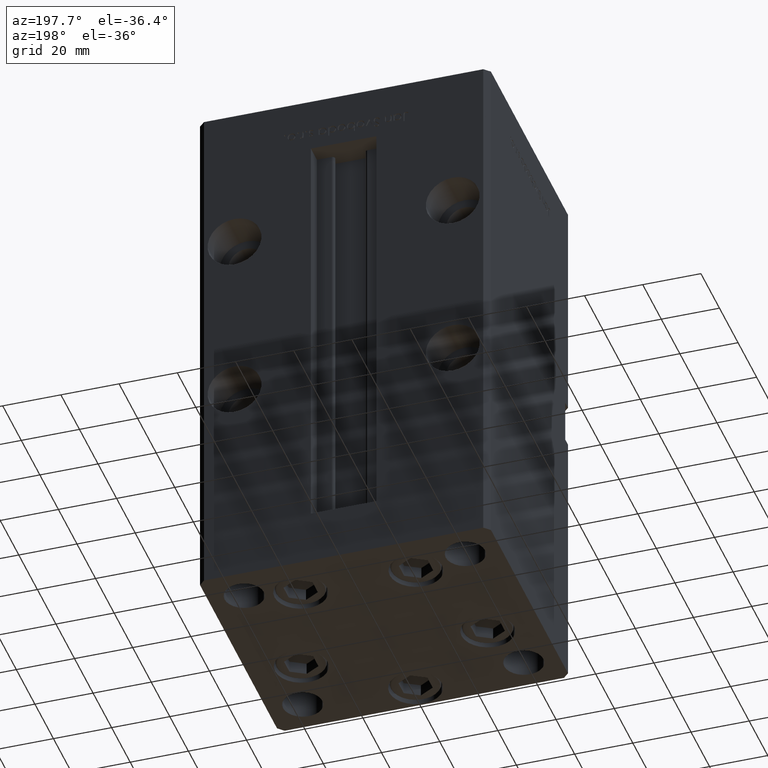
[diagram: clean part render]
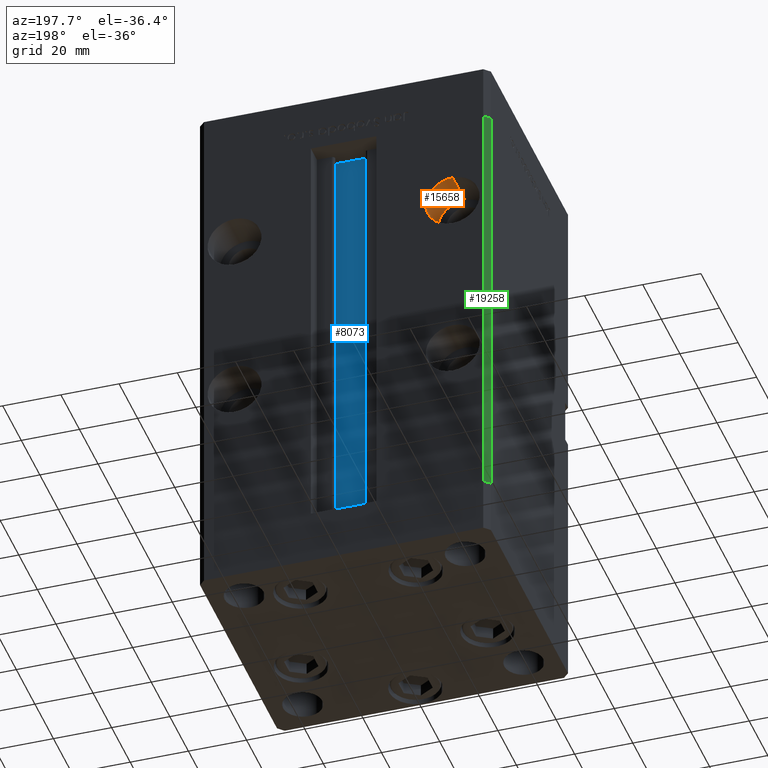
[diagram: same view with three faces highlighted in distinct colors, each labeled with its STEP entity id]
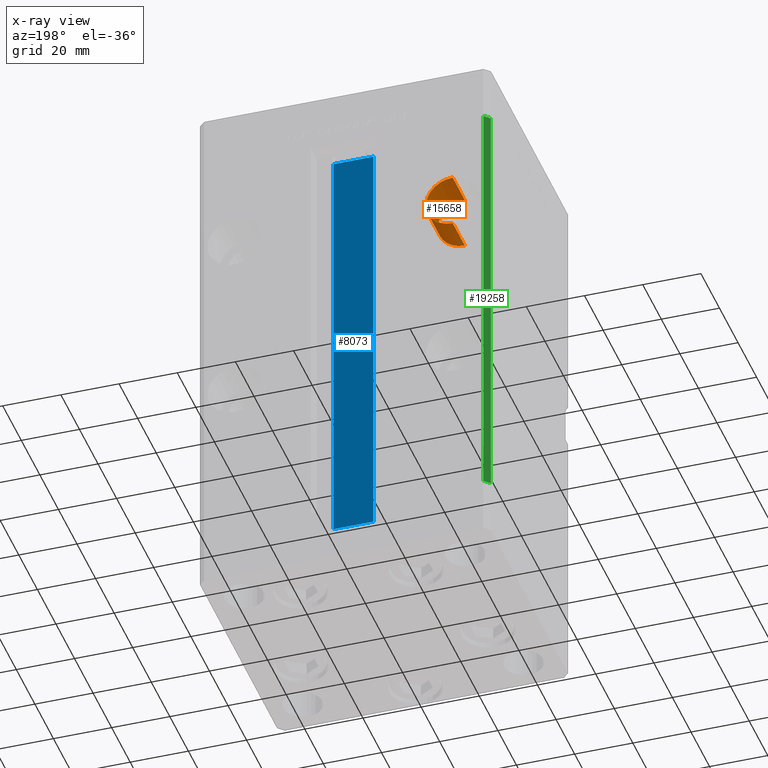
[diagram: x-ray of the same camera — body ghosted, the three highlighted faces saturated]
A machine part, auxiliary view with three faces highlighted in distinct colors.
The next image is the same camera in x-ray (body ghosted, the three faces saturated) — at least one of them is partly hidden behind the body in this view.
Their STEP definitions:

[orange] entity #15658 — the highlighted cylindrical surface (edge-blend (fillet) strip) has radius 9.25 mm, axis along (0, 1, 0).
#136 = EDGE_CURVE ( 'NONE', #12472, #22911, #19868, .T. ) ;
#2874 = FACE_OUTER_BOUND ( 'NONE', #48687, .T. ) ;
#3145 = CYLINDRICAL_SURFACE ( 'NONE', #9262, 9.250000000000008882 ) ;
#6945 = CARTESIAN_POINT ( 'NONE',  ( -37.50000000000000000, 30.50000000000000000, 107.2499999999999858 ) ) ;
#7364 = CARTESIAN_POINT ( 'NONE',  ( -37.50000000000000000, 30.50000000000000000, 116.4999999999999858 ) ) ;
#7430 = CARTESIAN_POINT ( 'NONE',  ( -37.50000000000000000, 30.50000000000000000, 116.4999999999999858 ) ) ;
#7508 = AXIS2_PLACEMENT_3D ( 'NONE', #7364, #14899, #52775 ) ;
#9262 = AXIS2_PLACEMENT_3D ( 'NONE', #7430, #32404, #31363 ) ;
#9905 = CIRCLE ( 'NONE', #31388, 9.250000000000008882 ) ;
#12472 = VERTEX_POINT ( 'NONE', #38264 ) ;
#14899 = DIRECTION ( 'NONE',  ( 0.000000000000000000, 1.000000000000000000, -0.000000000000000000 ) ) ;
#15658 = ADVANCED_FACE ( 'NONE', ( #2874 ), #3145, .F. ) ;
#18615 = ORIENTED_EDGE ( 'NONE', *, *, #25409, .T. ) ;
#19291 = CARTESIAN_POINT ( 'NONE',  ( -37.50000000000000000, 43.50000000000000000, 107.2499999999999858 ) ) ;
#19500 = CARTESIAN_POINT ( 'NONE',  ( -37.50000000000000000, 30.50000000000000000, 107.2499999999999858 ) ) ;
#19600 = ORIENTED_EDGE ( 'NONE', *, *, #22528, .F. ) ;
#19868 = LINE ( 'NONE', #28189, #37225 ) ;
#21587 = VERTEX_POINT ( 'NONE', #19500 ) ;
#22528 = EDGE_CURVE ( 'NONE', #21587, #47457, #43776, .T. ) ;
#22911 = VERTEX_POINT ( 'NONE', #51252 ) ;
#23329 = DIRECTION ( 'NONE',  ( -0.000000000000000000, 1.000000000000000000, -0.000000000000000000 ) ) ;
#25409 = EDGE_CURVE ( 'NONE', #22911, #47457, #9905, .T. ) ;
#25631 = CARTESIAN_POINT ( 'NONE',  ( -37.50000000000000000, 43.50000000000000000, 116.4999999999999858 ) ) ;
#26133 = VECTOR ( 'NONE', #23329, 1000.000000000000000 ) ;
#28189 = CARTESIAN_POINT ( 'NONE',  ( -37.50000000000000000, 30.50000000000000000, 125.7500000000000000 ) ) ;
#31363 = DIRECTION ( 'NONE',  ( 0.000000000000000000, 0.000000000000000000, 1.000000000000000000 ) ) ;
#31388 = AXIS2_PLACEMENT_3D ( 'NONE', #25631, #33435, #45267 ) ;
#32404 = DIRECTION ( 'NONE',  ( -0.000000000000000000, 1.000000000000000000, -0.000000000000000000 ) ) ;
#32815 = ORIENTED_EDGE ( 'NONE', *, *, #136, .T. ) ;
#33435 = DIRECTION ( 'NONE',  ( 0.000000000000000000, 1.000000000000000000, -0.000000000000000000 ) ) ;
#34092 = DIRECTION ( 'NONE',  ( -0.000000000000000000, 1.000000000000000000, -0.000000000000000000 ) ) ;
#34871 = ORIENTED_EDGE ( 'NONE', *, *, #35394, .F. ) ;
#35394 = EDGE_CURVE ( 'NONE', #12472, #21587, #48714, .T. ) ;
#37225 = VECTOR ( 'NONE', #34092, 1000.000000000000000 ) ;
#38264 = CARTESIAN_POINT ( 'NONE',  ( -37.50000000000000000, 30.50000000000000000, 125.7500000000000000 ) ) ;
#43776 = LINE ( 'NONE', #6945, #26133 ) ;
#45267 = DIRECTION ( 'NONE',  ( 0.000000000000000000, 0.000000000000000000, -1.000000000000000000 ) ) ;
#47457 = VERTEX_POINT ( 'NONE', #19291 ) ;
#48687 = EDGE_LOOP ( 'NONE', ( #19600, #34871, #32815, #18615 ) ) ;
#48714 = CIRCLE ( 'NONE', #7508, 9.250000000000008882 ) ;
#51252 = CARTESIAN_POINT ( 'NONE',  ( -37.50000000000000000, 43.50000000000000000, 125.7500000000000000 ) ) ;
#52775 = DIRECTION ( 'NONE',  ( 0.000000000000000000, 0.000000000000000000, -1.000000000000000000 ) ) ;

[blue] entity #8073 — the highlighted planar face has unit normal (0, -1, 0).
#2739 = ORIENTED_EDGE ( 'NONE', *, *, #6707, .F. ) ;
#2841 = LINE ( 'NONE', #43168, #48184 ) ;
#3620 = ORIENTED_EDGE ( 'NONE', *, *, #49690, .F. ) ;
#4162 = VECTOR ( 'NONE', #13924, 1000.000000000000000 ) ;
#6329 = DIRECTION ( 'NONE',  ( -0.000000000000000000, -0.000000000000000000, 1.000000000000000000 ) ) ;
#6707 = EDGE_CURVE ( 'NONE', #43654, #16353, #7800, .T. ) ;
#7800 = LINE ( 'NONE', #40332, #34752 ) ;
#8073 = ADVANCED_FACE ( 'NONE', ( #19259 ), #52060, .F. ) ;
#10410 = DIRECTION ( 'NONE',  ( 0.000000000000000000, -1.000000000000000000, -0.000000000000000000 ) ) ;
#12468 = EDGE_CURVE ( 'NONE', #40328, #16353, #26166, .T. ) ;
#13924 = DIRECTION ( 'NONE',  ( 1.000000000000000000, -0.000000000000000000, -0.000000000000000000 ) ) ;
#15283 = CARTESIAN_POINT ( 'NONE',  ( 6.876153656360465050, 32.99999999999986500, 0.000000000000000000 ) ) ;
#16113 = DIRECTION ( 'NONE',  ( -1.000000000000000000, 0.000000000000000000, 0.000000000000000000 ) ) ;
#16124 = ORIENTED_EDGE ( 'NONE', *, *, #37995, .F. ) ;
#16353 = VERTEX_POINT ( 'NONE', #39231 ) ;
#16543 = ORIENTED_EDGE ( 'NONE', *, *, #12468, .T. ) ;
#18359 = DIRECTION ( 'NONE',  ( -0.000000000000000000, -0.000000000000000000, 1.000000000000000000 ) ) ;
#18473 = DIRECTION ( 'NONE',  ( 0.000000000000000000, 0.000000000000000000, -1.000000000000000000 ) ) ;
#18621 = CARTESIAN_POINT ( 'NONE',  ( -6.876153656360465050, 32.99999999999986500, 0.000000000000000000 ) ) ;
#19259 = FACE_OUTER_BOUND ( 'NONE', #35147, .T. ) ;
#20507 = CARTESIAN_POINT ( 'NONE',  ( -6.876153656360465050, 32.99999999999986500, 0.000000000000000000 ) ) ;
#21941 = AXIS2_PLACEMENT_3D ( 'NONE', #38643, #10410, #18473 ) ;
#26011 = CARTESIAN_POINT ( 'NONE',  ( 6.876153656360465050, 32.99999999999986500, 0.000000000000000000 ) ) ;
#26166 = LINE ( 'NONE', #18621, #36647 ) ;
#27654 = VERTEX_POINT ( 'NONE', #15283 ) ;
#34087 = LINE ( 'NONE', #26011, #4162 ) ;
#34752 = VECTOR ( 'NONE', #16113, 1000.000000000000000 ) ;
#35147 = EDGE_LOOP ( 'NONE', ( #3620, #16124, #16543, #2739 ) ) ;
#36647 = VECTOR ( 'NONE', #18359, 1000.000000000000000 ) ;
#37995 = EDGE_CURVE ( 'NONE', #40328, #27654, #34087, .T. ) ;
#38643 = CARTESIAN_POINT ( 'NONE',  ( 6.876153656360465050, 32.99999999999986500, 0.000000000000000000 ) ) ;
#39231 = CARTESIAN_POINT ( 'NONE',  ( -6.876153656360465050, 32.99999999999986500, 148.5000000000000000 ) ) ;
#40328 = VERTEX_POINT ( 'NONE', #20507 ) ;
#40332 = CARTESIAN_POINT ( 'NONE',  ( 0.000000000000000000, 32.99999999999986500, 148.5000000000000000 ) ) ;
#41042 = CARTESIAN_POINT ( 'NONE',  ( 6.876153656360465050, 32.99999999999986500, 148.5000000000000000 ) ) ;
#43168 = CARTESIAN_POINT ( 'NONE',  ( 6.876153656360465050, 32.99999999999986500, 0.000000000000000000 ) ) ;
#43654 = VERTEX_POINT ( 'NONE', #41042 ) ;
#48184 = VECTOR ( 'NONE', #6329, 1000.000000000000000 ) ;
#49690 = EDGE_CURVE ( 'NONE', #27654, #43654, #2841, .T. ) ;
#52060 = PLANE ( 'NONE',  #21941 ) ;

[green] entity #19258 — the highlighted planar face has unit normal (0.7071, -0.7071, 0).
#503 = FACE_OUTER_BOUND ( 'NONE', #11515, .T. ) ;
#3671 = LINE ( 'NONE', #11994, #4237 ) ;
#3992 = VECTOR ( 'NONE', #4651, 1000.000000000000000 ) ;
#4237 = VECTOR ( 'NONE', #16278, 1000.000000000000000 ) ;
#4651 = DIRECTION ( 'NONE',  ( -0.7071067811865487940, -0.7071067811865463515, 0.000000000000000000 ) ) ;
#6582 = VECTOR ( 'NONE', #28439, 1000.000000000000000 ) ;
#10252 = LINE ( 'NONE', #31471, #45645 ) ;
#10897 = VERTEX_POINT ( 'NONE', #21786 ) ;
#11067 = EDGE_CURVE ( 'NONE', #10897, #32472, #12048, .T. ) ;
#11515 = EDGE_LOOP ( 'NONE', ( #31527, #52530, #11861, #33579 ) ) ;
#11713 = EDGE_CURVE ( 'NONE', #22247, #34665, #45520, .T. ) ;
#11861 = ORIENTED_EDGE ( 'NONE', *, *, #11067, .F. ) ;
#11994 = CARTESIAN_POINT ( 'NONE',  ( -50.00000000000001421, 41.49999999999999289, 148.5000000000000000 ) ) ;
#12048 = LINE ( 'NONE', #31961, #6582 ) ;
#16278 = DIRECTION ( 'NONE',  ( -0.000000000000000000, -0.000000000000000000, -1.000000000000000000 ) ) ;
#19258 = ADVANCED_FACE ( 'NONE', ( #503 ), #33557, .F. ) ;
#20758 = CARTESIAN_POINT ( 'NONE',  ( -50.00000000000001421, 41.49999999999999289, 0.000000000000000000 ) ) ;
#21724 = CARTESIAN_POINT ( 'NONE',  ( -48.00000000000000711, 43.50000000000000000, 148.5000000000000000 ) ) ;
#21786 = CARTESIAN_POINT ( 'NONE',  ( -48.00000000000000711, 43.50000000000000000, 148.5000000000000000 ) ) ;
#22247 = VERTEX_POINT ( 'NONE', #45140 ) ;
#26642 = DIRECTION ( 'NONE',  ( -0.000000000000000000, -0.000000000000000000, -1.000000000000000000 ) ) ;
#28439 = DIRECTION ( 'NONE',  ( -0.7071067811865487940, -0.7071067811865463515, 0.000000000000000000 ) ) ;
#28841 = CARTESIAN_POINT ( 'NONE',  ( -48.00000000000000711, 43.50000000000000000, 0.000000000000000000 ) ) ;
#29517 = DIRECTION ( 'NONE',  ( 0.7071067811865487940, 0.7071067811865463515, 0.000000000000000000 ) ) ;
#31161 = AXIS2_PLACEMENT_3D ( 'NONE', #21724, #50772, #29517 ) ;
#31471 = CARTESIAN_POINT ( 'NONE',  ( -48.00000000000000711, 43.50000000000000000, 148.5000000000000000 ) ) ;
#31527 = ORIENTED_EDGE ( 'NONE', *, *, #11713, .T. ) ;
#31961 = CARTESIAN_POINT ( 'NONE',  ( -48.00000000000000711, 43.50000000000000000, 148.5000000000000000 ) ) ;
#32472 = VERTEX_POINT ( 'NONE', #36121 ) ;
#33557 = PLANE ( 'NONE',  #31161 ) ;
#33579 = ORIENTED_EDGE ( 'NONE', *, *, #50902, .T. ) ;
#34665 = VERTEX_POINT ( 'NONE', #20758 ) ;
#36121 = CARTESIAN_POINT ( 'NONE',  ( -50.00000000000001421, 41.49999999999999289, 148.5000000000000000 ) ) ;
#41691 = EDGE_CURVE ( 'NONE', #32472, #34665, #3671, .T. ) ;
#45140 = CARTESIAN_POINT ( 'NONE',  ( -48.00000000000000711, 43.50000000000000000, 0.000000000000000000 ) ) ;
#45520 = LINE ( 'NONE', #28841, #3992 ) ;
#45645 = VECTOR ( 'NONE', #26642, 1000.000000000000000 ) ;
#50772 = DIRECTION ( 'NONE',  ( 0.7071067811865463515, -0.7071067811865487940, 0.000000000000000000 ) ) ;
#50902 = EDGE_CURVE ( 'NONE', #10897, #22247, #10252, .T. ) ;
#52530 = ORIENTED_EDGE ( 'NONE', *, *, #41691, .F. ) ;